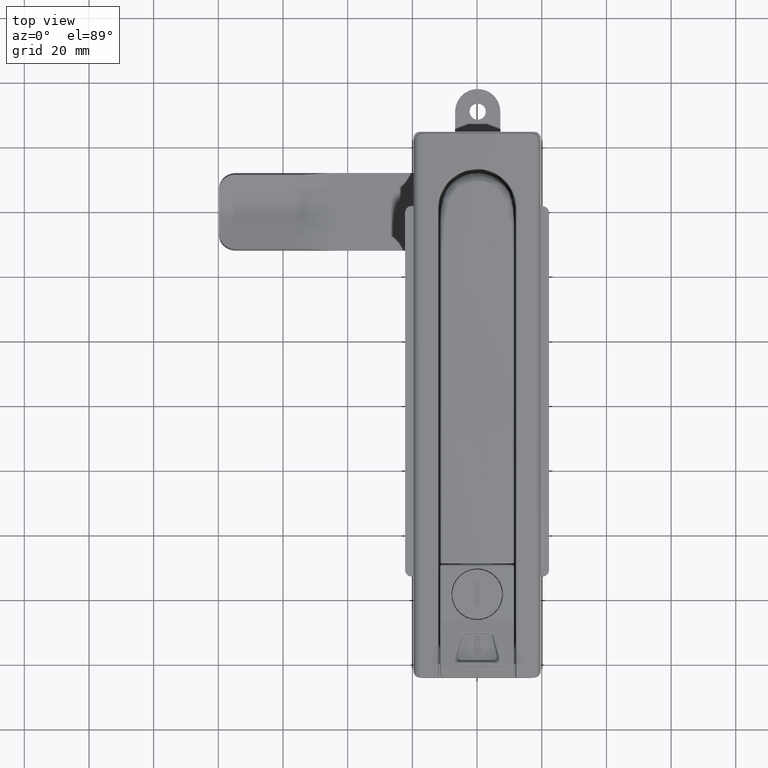
[diagram: clean part render]
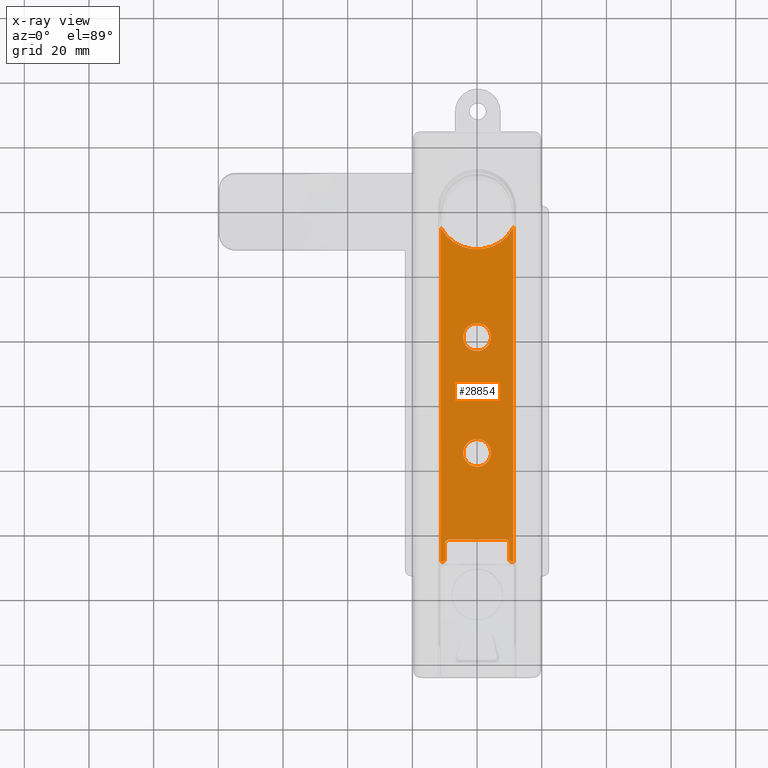
[diagram: x-ray — body ghosted, one internal face saturated and labeled with its STEP entity id]
A machine part, top view, then the same camera in x-ray: the body is ghosted and one INTERNAL B-rep face — a face not visible from any outside direction — is saturated and labeled: STEP entity #28854.
In plain terms, the highlighted planar face has unit normal (0, 0, 1).
Its self-contained STEP definition (entity closure, byte-faithful):
#2614=FACE_BOUND('',#5074,.T.);
#2615=FACE_BOUND('',#5075,.T.);
#2740=ELLIPSE('',#30749,1.30061979466865,1.3);
#2741=ELLIPSE('',#30751,1.30061979466865,1.3);
#2742=ELLIPSE('',#30752,0.700426521309505,0.7);
#2743=ELLIPSE('',#30753,1.30101389866255,1.3);
#2744=ELLIPSE('',#30754,1.30101389866255,1.3);
#2745=ELLIPSE('',#30755,0.700426521309505,0.7);
#2932=PLANE('',#30748);
#3291=FACE_OUTER_BOUND('',#5073,.T.);
#5073=EDGE_LOOP('',(#19291,#19292,#19293,#19294,#19295,#19296,#19297,#19298,
#19299,#19300,#19301,#19302,#19303,#19304));
#5074=EDGE_LOOP('',(#19305));
#5075=EDGE_LOOP('',(#19306));
#6995=LINE('',#40994,#8771);
#6996=LINE('',#40998,#8772);
#6997=LINE('',#41002,#8773);
#6998=LINE('',#41006,#8774);
#6999=LINE('',#41010,#8775);
#7000=LINE('',#41014,#8776);
#7001=LINE('',#41018,#8777);
#8771=VECTOR('',#33410,0.095808008779299);
#8772=VECTOR('',#33413,103.430965499283);
#8773=VECTOR('',#33416,103.430965499283);
#8774=VECTOR('',#33419,0.095808008779299);
#8775=VECTOR('',#33422,4.84065665710501);
#8776=VECTOR('',#33425,17.1967754274887);
#8777=VECTOR('',#33428,4.84065665710501);
#10479=CIRCLE('',#30750,12.67756428236);
#10480=CIRCLE('',#30756,4.27448228335744);
#10481=CIRCLE('',#30757,4.27448228335744);
#11515=VERTEX_POINT('',#40992);
#11516=VERTEX_POINT('',#40993);
#11517=VERTEX_POINT('',#40995);
#11518=VERTEX_POINT('',#40997);
#11519=VERTEX_POINT('',#40999);
#11520=VERTEX_POINT('',#41001);
#11521=VERTEX_POINT('',#41003);
#11522=VERTEX_POINT('',#41005);
#11523=VERTEX_POINT('',#41007);
#11524=VERTEX_POINT('',#41009);
#11525=VERTEX_POINT('',#41011);
#11526=VERTEX_POINT('',#41013);
#11527=VERTEX_POINT('',#41015);
#11528=VERTEX_POINT('',#41017);
#11529=VERTEX_POINT('',#41020);
#11530=VERTEX_POINT('',#41022);
#14521=EDGE_CURVE('',#11515,#11516,#6995,.T.);
#14522=EDGE_CURVE('',#11516,#11517,#2740,.T.);
#14523=EDGE_CURVE('',#11517,#11518,#6996,.T.);
#14524=EDGE_CURVE('',#11518,#11519,#10479,.T.);
#14525=EDGE_CURVE('',#11519,#11520,#6997,.T.);
#14526=EDGE_CURVE('',#11520,#11521,#2741,.T.);
#14527=EDGE_CURVE('',#11521,#11522,#6998,.T.);
#14528=EDGE_CURVE('',#11522,#11523,#2742,.T.);
#14529=EDGE_CURVE('',#11523,#11524,#6999,.T.);
#14530=EDGE_CURVE('',#11524,#11525,#2743,.T.);
#14531=EDGE_CURVE('',#11525,#11526,#7000,.T.);
#14532=EDGE_CURVE('',#11526,#11527,#2744,.T.);
#14533=EDGE_CURVE('',#11527,#11528,#7001,.T.);
#14534=EDGE_CURVE('',#11528,#11515,#2745,.T.);
#14535=EDGE_CURVE('',#11529,#11529,#10480,.T.);
#14536=EDGE_CURVE('',#11530,#11530,#10481,.T.);
#19291=ORIENTED_EDGE('',*,*,#14521,.T.);
#19292=ORIENTED_EDGE('',*,*,#14522,.T.);
#19293=ORIENTED_EDGE('',*,*,#14523,.T.);
#19294=ORIENTED_EDGE('',*,*,#14524,.T.);
#19295=ORIENTED_EDGE('',*,*,#14525,.T.);
#19296=ORIENTED_EDGE('',*,*,#14526,.T.);
#19297=ORIENTED_EDGE('',*,*,#14527,.T.);
#19298=ORIENTED_EDGE('',*,*,#14528,.T.);
#19299=ORIENTED_EDGE('',*,*,#14529,.T.);
#19300=ORIENTED_EDGE('',*,*,#14530,.T.);
#19301=ORIENTED_EDGE('',*,*,#14531,.T.);
#19302=ORIENTED_EDGE('',*,*,#14532,.T.);
#19303=ORIENTED_EDGE('',*,*,#14533,.T.);
#19304=ORIENTED_EDGE('',*,*,#14534,.T.);
#19305=ORIENTED_EDGE('',*,*,#14535,.T.);
#19306=ORIENTED_EDGE('',*,*,#14536,.T.);
#28854=ADVANCED_FACE('',(#3291,#2614,#2615),#2932,.T.);
#30748=AXIS2_PLACEMENT_3D('',#40991,#33408,#33409);
#30749=AXIS2_PLACEMENT_3D('',#40996,#33411,#33412);
#30750=AXIS2_PLACEMENT_3D('',#41000,#33414,#33415);
#30751=AXIS2_PLACEMENT_3D('',#41004,#33417,#33418);
#30752=AXIS2_PLACEMENT_3D('',#41008,#33420,#33421);
#30753=AXIS2_PLACEMENT_3D('',#41012,#33423,#33424);
#30754=AXIS2_PLACEMENT_3D('',#41016,#33426,#33427);
#30755=AXIS2_PLACEMENT_3D('',#41019,#33429,#33430);
#30756=AXIS2_PLACEMENT_3D('',#41021,#33431,#33432);
#30757=AXIS2_PLACEMENT_3D('',#41023,#33433,#33434);
#33408=DIRECTION('center_axis',(0.,0.,-1.));
#33409=DIRECTION('ref_axis',(1.,0.,0.));
#33410=DIRECTION('',(0.,1.,0.));
#33411=DIRECTION('center_axis',(0.,0.,1.));
#33412=DIRECTION('ref_axis',(0.678270804002656,0.734812027961975,0.));
#33413=DIRECTION('',(1.,0.,0.));
#33414=DIRECTION('center_axis',(0.,0.,1.));
#33415=DIRECTION('ref_axis',(-1.,0.,0.));
#33416=DIRECTION('',(-1.,-3.93848467197744E-16,0.));
#33417=DIRECTION('center_axis',(0.,0.,1.));
#33418=DIRECTION('ref_axis',(-0.678270804002656,0.734812027961975,0.));
#33419=DIRECTION('',(0.,1.,0.));
#33420=DIRECTION('center_axis',(0.,0.,-1.));
#33421=DIRECTION('ref_axis',(0.599956317429003,-0.80003276006488,0.));
#33422=DIRECTION('',(1.,0.,0.));
#33423=DIRECTION('center_axis',(0.,0.,1.));
#33424=DIRECTION('ref_axis',(-0.707106781186548,0.707106781186548,0.));
#33425=DIRECTION('',(0.,1.,0.));
#33426=DIRECTION('center_axis',(0.,0.,1.));
#33427=DIRECTION('ref_axis',(-0.707106781186548,-0.707106781186548,0.));
#33428=DIRECTION('',(-1.,0.,0.));
#33429=DIRECTION('center_axis',(0.,0.,-1.));
#33430=DIRECTION('ref_axis',(-0.599956317429003,-0.80003276006488,0.));
#33431=DIRECTION('center_axis',(0.,0.,1.));
#33432=DIRECTION('ref_axis',(-1.,0.,0.));
#33433=DIRECTION('center_axis',(0.,0.,1.));
#33434=DIRECTION('ref_axis',(-1.,0.,0.));
#40991=CARTESIAN_POINT('Origin',(-123.125,2.22044604925031E-13,-24.4));
#40992=CARTESIAN_POINT('',(-109.242013086137,10.5977444068891,-24.4));
#40993=CARTESIAN_POINT('',(-109.242013086137,10.6935524156684,-24.4));
#40994=CARTESIAN_POINT('',(-109.242013086137,2.22044604925031E-13,-24.4));
#40995=CARTESIAN_POINT('',(-109.349515174283,11.2112178588202,-24.4));
#40996=CARTESIAN_POINT('Origin',(-110.542298260163,10.6929345906806,-24.4));
#40997=CARTESIAN_POINT('',(-5.91854967500033,11.2112178588202,-24.4));
#40998=CARTESIAN_POINT('',(-4.88166325481085,11.2112178588202,-24.4));
#40999=CARTESIAN_POINT('',(-5.91854967500018,-11.2112178588198,-24.4));
#41000=CARTESIAN_POINT('Origin',(-2.8421709430404E-14,2.48689957516035E-13,
-24.4));
#41001=CARTESIAN_POINT('',(-109.349515174283,-11.2112178588198,-24.4));
#41002=CARTESIAN_POINT('',(-110.535538924099,-11.2112178588198,-24.4));
#41003=CARTESIAN_POINT('',(-109.242013086137,-10.693552415668,-24.4));
#41004=CARTESIAN_POINT('Origin',(-110.542298260163,-10.6929345906802,-24.4));
#41005=CARTESIAN_POINT('',(-109.242013086137,-10.5977444068887,-24.4));
#41006=CARTESIAN_POINT('',(-109.242013086137,2.22044604925031E-13,-24.4));
#41007=CARTESIAN_POINT('',(-108.542268943361,-9.89788086329663,-24.4));
#41008=CARTESIAN_POINT('Origin',(-108.541859530893,-10.5981538892171,-24.4));
#41009=CARTESIAN_POINT('',(-103.701612286256,-9.89788086329663,-24.4));
#41010=CARTESIAN_POINT('',(-123.125,-9.89788086329663,-24.4));
#41011=CARTESIAN_POINT('',(-102.402119136703,-8.59838771374417,-24.4));
#41012=CARTESIAN_POINT('Origin',(-103.702626184841,-8.59737381515865,-24.4));
#41013=CARTESIAN_POINT('',(-102.402119136703,8.59838771374455,-24.4));
#41014=CARTESIAN_POINT('',(-102.402119136703,2.22044604925031E-13,-24.4));
#41015=CARTESIAN_POINT('',(-103.701612286256,9.89788086329701,-24.4));
#41016=CARTESIAN_POINT('Origin',(-103.702626184841,8.59737381515903,-24.4));
#41017=CARTESIAN_POINT('',(-108.542268943361,9.89788086329701,-24.4));
#41018=CARTESIAN_POINT('',(-123.125,9.89788086329701,-24.4));
#41019=CARTESIAN_POINT('Origin',(-108.541859530893,10.5981538892175,-24.4));
#41020=CARTESIAN_POINT('',(-44.0744822833574,2.20268248085631E-13,-24.4));
#41021=CARTESIAN_POINT('Origin',(-39.8,2.20268248085631E-13,-24.4));
#41022=CARTESIAN_POINT('',(-79.8744822833575,1.91846538655227E-13,-24.4));
#41023=CARTESIAN_POINT('Origin',(-75.6,1.91846538655227E-13,-24.4));